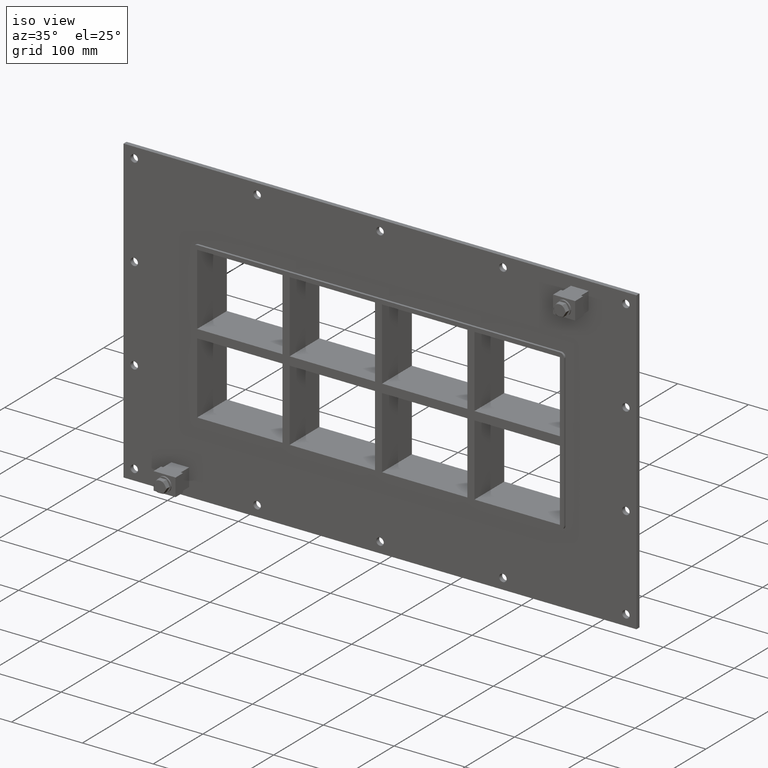
[diagram: clean part render]
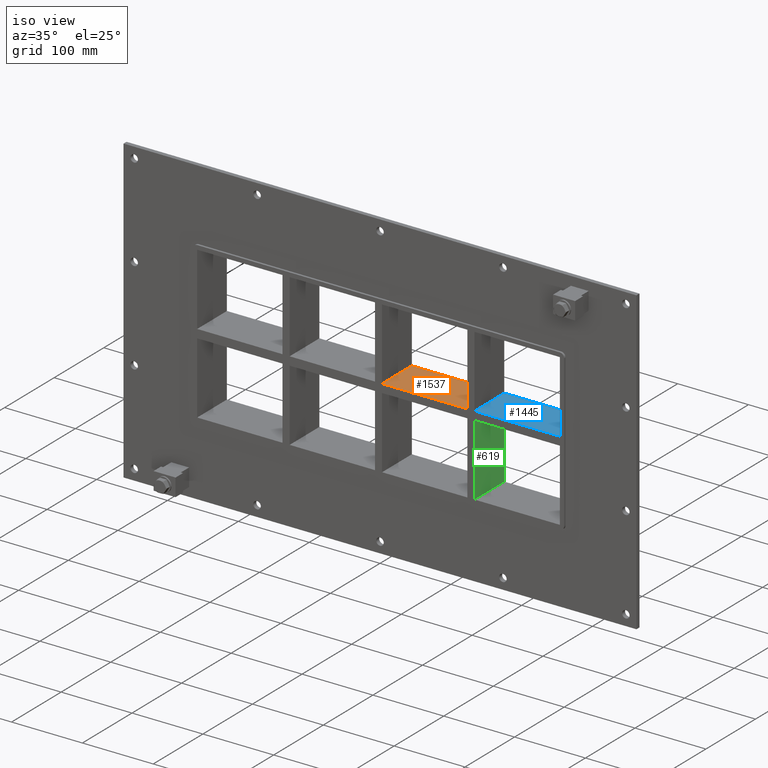
[diagram: same view with three faces highlighted in distinct colors, each labeled with its STEP entity id]
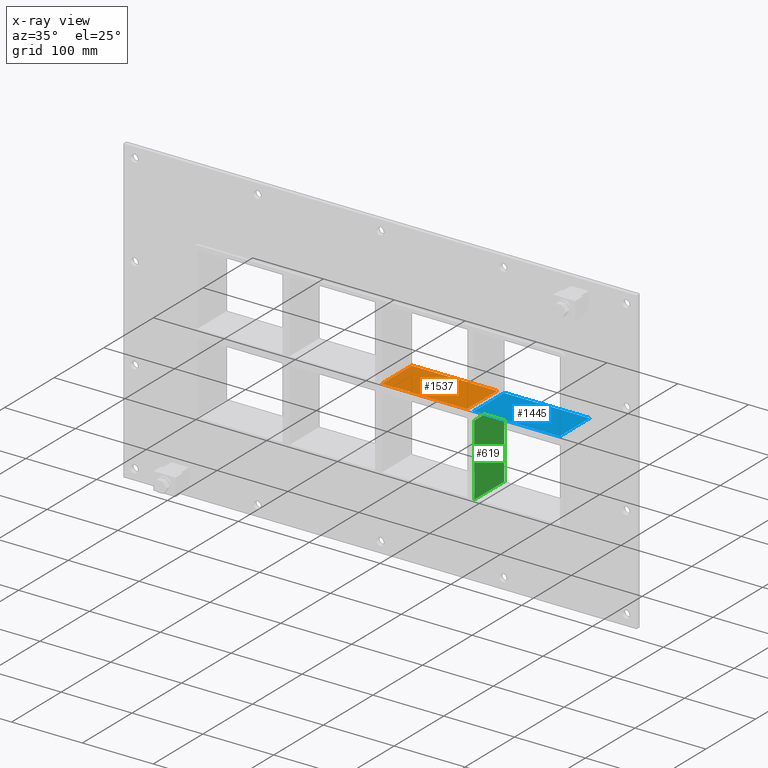
[diagram: x-ray of the same camera — body ghosted, the three highlighted faces saturated]
A machine part, iso view with three faces highlighted in distinct colors.
The next image is the same camera in x-ray (body ghosted, the three faces saturated) — at least one of them is partly hidden behind the body in this view.
Their STEP definitions:

[orange] entity #1537 — the highlighted planar face has unit normal (0, 0, 1).
#465=CARTESIAN_POINT('',(125.50000000000098,-3.0,5.999999999999091));
#466=VERTEX_POINT('',#465);
#467=CARTESIAN_POINT('',(125.50000000000098,57.0,5.999999999999091));
#468=VERTEX_POINT('',#467);
#469=CARTESIAN_POINT('',(125.50000000000098,-3.0,5.999999999999091));
#470=DIRECTION('',(0.0,1.0,0.0));
#471=VECTOR('',#470,60.0);
#472=LINE('',#469,#471);
#473=EDGE_CURVE('',#466,#468,#472,.T.);
#705=CARTESIAN_POINT('',(5.000000000007283,57.0,5.999999999999091));
#706=VERTEX_POINT('',#705);
#707=CARTESIAN_POINT('',(5.000000000007283,-3.0,5.999999999999091));
#708=VERTEX_POINT('',#707);
#709=CARTESIAN_POINT('',(5.000000000007283,57.0,5.999999999999091));
#710=DIRECTION('',(0.0,-1.0,0.0));
#711=VECTOR('',#710,60.0);
#712=LINE('',#709,#711);
#713=EDGE_CURVE('',#706,#708,#712,.T.);
#950=CARTESIAN_POINT('',(5.000000000007276,-3.0,5.999999999999091));
#951=DIRECTION('',(1.0,0.0,0.0));
#952=VECTOR('',#951,120.49999999999369);
#953=LINE('',#950,#952);
#954=EDGE_CURVE('',#708,#466,#953,.T.);
#1299=CARTESIAN_POINT('',(5.000000000007276,57.0,5.999999999999091));
#1300=DIRECTION('',(1.0,0.0,0.0));
#1301=VECTOR('',#1300,120.49999999999369);
#1302=LINE('',#1299,#1301);
#1303=EDGE_CURVE('',#706,#468,#1302,.T.);
#1526=CARTESIAN_POINT('',(-255.99999999999739,-3.0,5.999999999999091));
#1527=DIRECTION('',(0.0,0.0,1.0));
#1528=DIRECTION('',(1.0,0.0,0.0));
#1529=AXIS2_PLACEMENT_3D('',#1526,#1527,#1528);
#1530=PLANE('',#1529);
#1531=ORIENTED_EDGE('',*,*,#473,.T.);
#1532=ORIENTED_EDGE('',*,*,#1303,.F.);
#1533=ORIENTED_EDGE('',*,*,#713,.T.);
#1534=ORIENTED_EDGE('',*,*,#954,.T.);
#1535=EDGE_LOOP('',(#1531,#1532,#1533,#1534));
#1536=FACE_OUTER_BOUND('',#1535,.T.);
#1537=ADVANCED_FACE('',(#1536),#1530,.T.);

[blue] entity #1445 — the highlighted planar face has unit normal (0, 0, 1).
#545=CARTESIAN_POINT('',(135.50000000000728,57.0,5.999999999999091));
#546=VERTEX_POINT('',#545);
#547=CARTESIAN_POINT('',(135.50000000000728,-3.0,5.999999999999091));
#548=VERTEX_POINT('',#547);
#549=CARTESIAN_POINT('',(135.50000000000728,57.0,5.999999999999091));
#550=DIRECTION('',(0.0,-1.0,0.0));
#551=VECTOR('',#550,60.0);
#552=LINE('',#549,#551);
#553=EDGE_CURVE('',#546,#548,#552,.T.);
#1018=CARTESIAN_POINT('',(255.99999999999923,-3.0,5.999999999999091));
#1019=VERTEX_POINT('',#1018);
#1026=CARTESIAN_POINT('',(135.50000000000728,-3.0,5.999999999999091));
#1027=DIRECTION('',(1.0,0.0,0.0));
#1028=VECTOR('',#1027,120.49999999999193);
#1029=LINE('',#1026,#1028);
#1030=EDGE_CURVE('',#548,#1019,#1029,.T.);
#1255=CARTESIAN_POINT('',(255.99999999999923,57.0,5.999999999999091));
#1256=VERTEX_POINT('',#1255);
#1257=CARTESIAN_POINT('',(135.50000000000728,57.0,5.999999999999091));
#1258=DIRECTION('',(1.0,0.0,0.0));
#1259=VECTOR('',#1258,120.49999999999193);
#1260=LINE('',#1257,#1259);
#1261=EDGE_CURVE('',#546,#1256,#1260,.T.);
#1429=CARTESIAN_POINT('',(-255.99999999999739,-3.0,5.999999999999091));
#1430=DIRECTION('',(0.0,0.0,1.0));
#1431=DIRECTION('',(1.0,0.0,0.0));
#1432=AXIS2_PLACEMENT_3D('',#1429,#1430,#1431);
#1433=PLANE('',#1432);
#1434=ORIENTED_EDGE('',*,*,#553,.T.);
#1435=ORIENTED_EDGE('',*,*,#1030,.T.);
#1436=CARTESIAN_POINT('',(256.00000000000011,57.000000000000007,5.999999999999091));
#1437=DIRECTION('',(0.0,-1.0,0.0));
#1438=VECTOR('',#1437,60.000000000000007);
#1439=LINE('',#1436,#1438);
#1440=EDGE_CURVE('',#1256,#1019,#1439,.T.);
#1441=ORIENTED_EDGE('',*,*,#1440,.F.);
#1442=ORIENTED_EDGE('',*,*,#1261,.F.);
#1443=EDGE_LOOP('',(#1434,#1435,#1441,#1442));
#1444=FACE_OUTER_BOUND('',#1443,.T.);
#1445=ADVANCED_FACE('',(#1444),#1433,.T.);

[green] entity #619 — the highlighted planar face has unit normal (1, 0, 0).
#580=CARTESIAN_POINT('',(135.50000000000728,-3.0,106.99999999999996));
#581=DIRECTION('',(1.0,0.0,0.0));
#582=DIRECTION('',(0.0,0.0,-1.0));
#583=AXIS2_PLACEMENT_3D('',#580,#581,#582);
#584=PLANE('',#583);
#585=CARTESIAN_POINT('',(135.50000000000728,-3.0,-6.000000000010779));
#586=VERTEX_POINT('',#585);
#587=CARTESIAN_POINT('',(135.50000000000728,57.0,-6.000000000010779));
#588=VERTEX_POINT('',#587);
#589=CARTESIAN_POINT('',(135.50000000000728,-3.0,-6.000000000010788));
#590=DIRECTION('',(0.0,1.0,0.0));
#591=VECTOR('',#590,60.0);
#592=LINE('',#589,#591);
#593=EDGE_CURVE('',#586,#588,#592,.T.);
#594=ORIENTED_EDGE('',*,*,#593,.F.);
#595=CARTESIAN_POINT('',(135.50000000000728,-3.0,-106.99999999998177));
#596=VERTEX_POINT('',#595);
#597=CARTESIAN_POINT('',(135.50000000000728,-3.0,-6.000000000010786));
#598=DIRECTION('',(0.0,0.0,-1.0));
#599=VECTOR('',#598,100.99999999997098);
#600=LINE('',#597,#599);
#601=EDGE_CURVE('',#586,#596,#600,.T.);
#602=ORIENTED_EDGE('',*,*,#601,.T.);
#603=CARTESIAN_POINT('',(135.50000000000728,57.0,-106.99999999998177));
#604=VERTEX_POINT('',#603);
#605=CARTESIAN_POINT('',(135.50000000000728,57.000000000000007,-107.00000000000003));
#606=DIRECTION('',(0.0,-1.0,0.0));
#607=VECTOR('',#606,60.000000000000007);
#608=LINE('',#605,#607);
#609=EDGE_CURVE('',#604,#596,#608,.T.);
#610=ORIENTED_EDGE('',*,*,#609,.F.);
#611=CARTESIAN_POINT('',(135.50000000000728,57.0,-6.000000000010786));
#612=DIRECTION('',(0.0,0.0,-1.0));
#613=VECTOR('',#612,100.99999999997098);
#614=LINE('',#611,#613);
#615=EDGE_CURVE('',#588,#604,#614,.T.);
#616=ORIENTED_EDGE('',*,*,#615,.F.);
#617=EDGE_LOOP('',(#594,#602,#610,#616));
#618=FACE_OUTER_BOUND('',#617,.T.);
#619=ADVANCED_FACE('',(#618),#584,.T.);